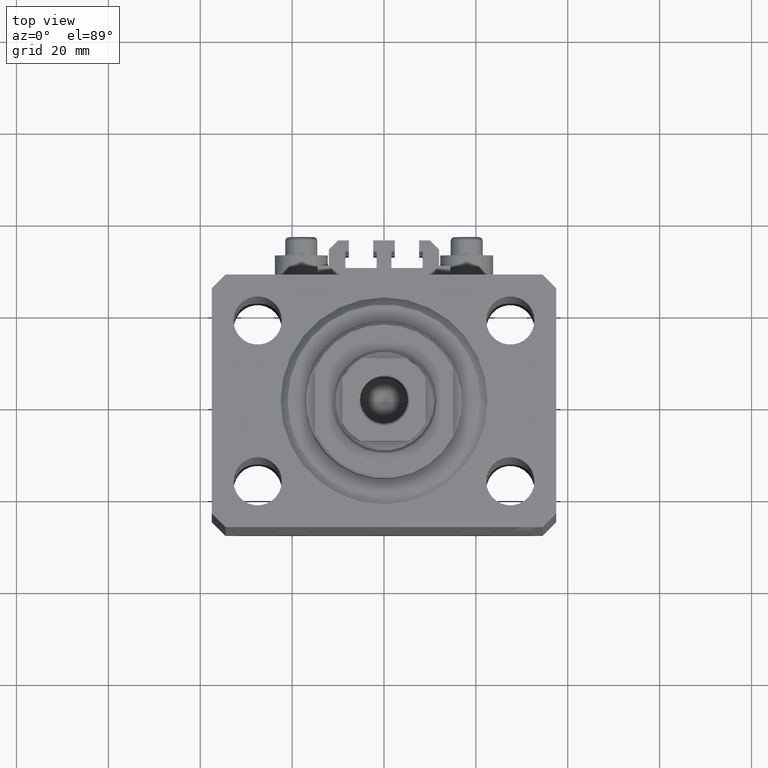
[diagram: clean part render]
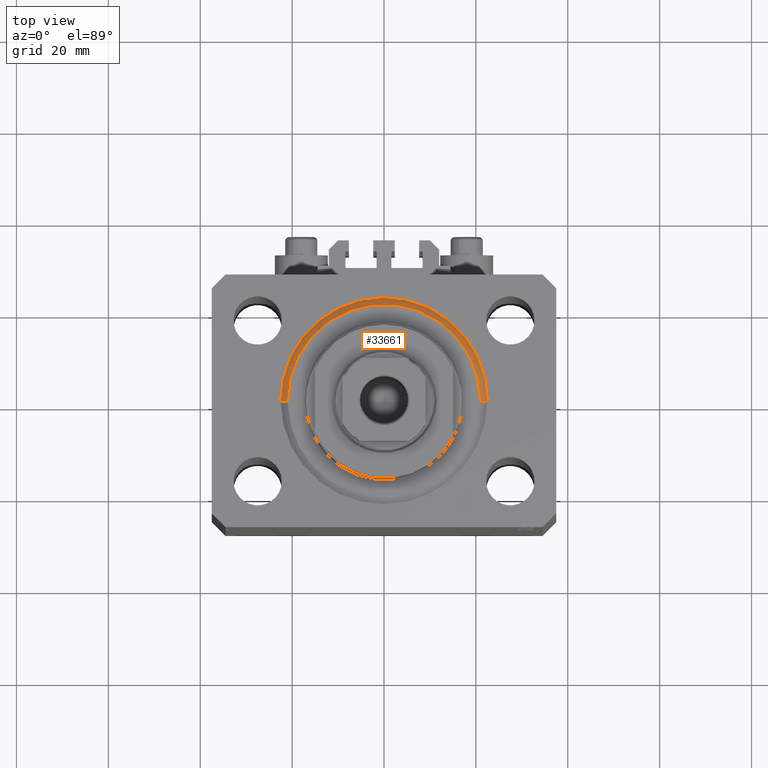
[diagram: same view with one face highlighted and labeled with its STEP entity id]
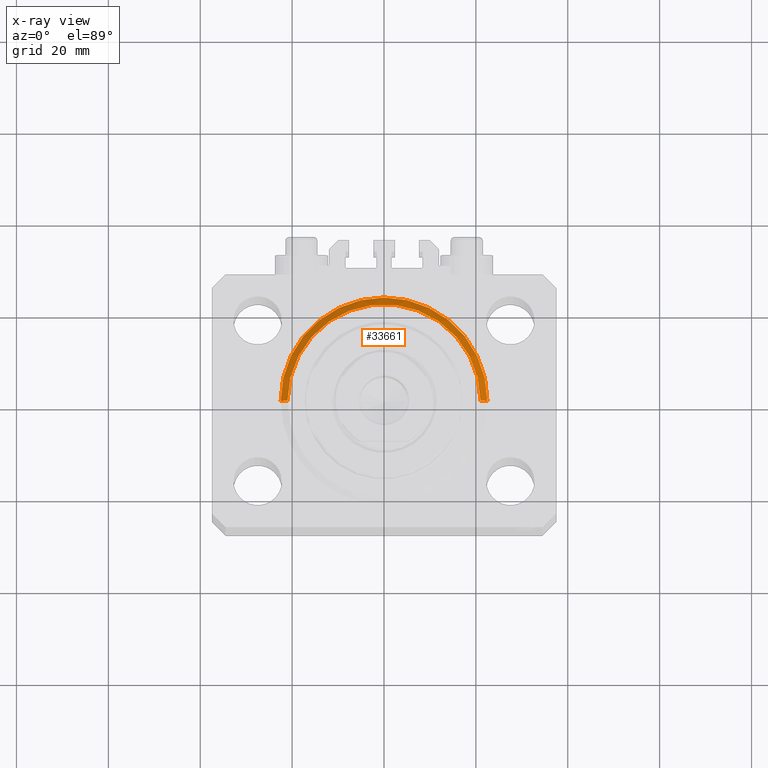
[diagram: x-ray of the same camera — body ghosted, the highlighted face saturated]
A machine part, top view. The second image highlights one B-rep face of the part: STEP entity #33661.
The next image is the same camera in x-ray: the body ghosted, the highlighted face saturated — about 0% of this face is hidden behind the body in this view.
In plain terms, the highlighted conical surface has half-angle 45 deg.
Its self-contained STEP definition (entity closure, byte-faithful):
#2045 = LINE ( 'NONE', #34855, #37126 ) ;
#2609 = VERTEX_POINT ( 'NONE', #21183 ) ;
#3238 = VERTEX_POINT ( 'NONE', #27158 ) ;
#3481 = EDGE_CURVE ( 'NONE', #44878, #2609, #20965, .T. ) ;
#6777 = CONICAL_SURFACE ( 'NONE', #15184, 22.50000000000000355, 0.7853981633974517207 ) ;
#6911 = CARTESIAN_POINT ( 'NONE',  ( -20.99999999999998934, 2.663606788145492628E-15, 0.000000000000000000 ) ) ;
#7780 = DIRECTION ( 'NONE',  ( 1.000000000000000000, 0.000000000000000000, 0.000000000000000000 ) ) ;
#8642 = AXIS2_PLACEMENT_3D ( 'NONE', #18269, #26598, #19416 ) ;
#9237 = DIRECTION ( 'NONE',  ( 0.7071067811865500152, 0.000000000000000000, 0.7071067811865451302 ) ) ;
#9729 = EDGE_LOOP ( 'NONE', ( #32117, #24034, #20092, #11347 ) ) ;
#9853 = VERTEX_POINT ( 'NONE', #14911 ) ;
#11347 = ORIENTED_EDGE ( 'NONE', *, *, #24240, .F. ) ;
#13273 = LINE ( 'NONE', #31249, #40754 ) ;
#14911 = CARTESIAN_POINT ( 'NONE',  ( 22.50000000000000355, 2.755455298081545172E-15, 1.500000000000001332 ) ) ;
#15184 = AXIS2_PLACEMENT_3D ( 'NONE', #25266, #33166, #7780 ) ;
#18269 = CARTESIAN_POINT ( 'NONE',  ( 0.000000000000000000, 0.000000000000000000, 1.500000000000001332 ) ) ;
#18566 = FACE_OUTER_BOUND ( 'NONE', #9729, .T. ) ;
#19416 = DIRECTION ( 'NONE',  ( 1.000000000000000000, 0.000000000000000000, 0.000000000000000000 ) ) ;
#20092 = ORIENTED_EDGE ( 'NONE', *, *, #43001, .F. ) ;
#20965 = CIRCLE ( 'NONE', #33198, 20.99999999999998934 ) ;
#21183 = CARTESIAN_POINT ( 'NONE',  ( 20.99999999999998934, 0.000000000000000000, 0.000000000000000000 ) ) ;
#23278 = DIRECTION ( 'NONE',  ( -0.000000000000000000, -0.000000000000000000, -1.000000000000000000 ) ) ;
#24034 = ORIENTED_EDGE ( 'NONE', *, *, #41522, .T. ) ;
#24240 = EDGE_CURVE ( 'NONE', #2609, #9853, #2045, .T. ) ;
#25266 = CARTESIAN_POINT ( 'NONE',  ( 0.000000000000000000, 0.000000000000000000, 1.500000000000001332 ) ) ;
#26598 = DIRECTION ( 'NONE',  ( -0.000000000000000000, -0.000000000000000000, 1.000000000000000000 ) ) ;
#27158 = CARTESIAN_POINT ( 'NONE',  ( -22.50000000000000355, 0.000000000000000000, 1.500000000000001332 ) ) ;
#30018 = CARTESIAN_POINT ( 'NONE',  ( 0.000000000000000000, 0.000000000000000000, 0.000000000000000000 ) ) ;
#31249 = CARTESIAN_POINT ( 'NONE',  ( -22.50000000000000355, 2.755455298081545172E-15, 1.500000000000001332 ) ) ;
#32117 = ORIENTED_EDGE ( 'NONE', *, *, #3481, .F. ) ;
#33166 = DIRECTION ( 'NONE',  ( -0.000000000000000000, -0.000000000000000000, 1.000000000000000000 ) ) ;
#33198 = AXIS2_PLACEMENT_3D ( 'NONE', #30018, #23278, #33821 ) ;
#33661 = ADVANCED_FACE ( 'NONE', ( #18566 ), #6777, .T. ) ;
#33821 = DIRECTION ( 'NONE',  ( 1.000000000000000000, 0.000000000000000000, 0.000000000000000000 ) ) ;
#33879 = CIRCLE ( 'NONE', #8642, 22.50000000000000355 ) ;
#34855 = CARTESIAN_POINT ( 'NONE',  ( 22.50000000000000355, 0.000000000000000000, 1.500000000000001332 ) ) ;
#37126 = VECTOR ( 'NONE', #9237, 1000.000000000000114 ) ;
#40754 = VECTOR ( 'NONE', #46322, 1000.000000000000114 ) ;
#41522 = EDGE_CURVE ( 'NONE', #44878, #3238, #13273, .T. ) ;
#43001 = EDGE_CURVE ( 'NONE', #9853, #3238, #33879, .T. ) ;
#44878 = VERTEX_POINT ( 'NONE', #6911 ) ;
#46322 = DIRECTION ( 'NONE',  ( -0.7071067811865500152, 8.659560562354963673E-17, 0.7071067811865451302 ) ) ;